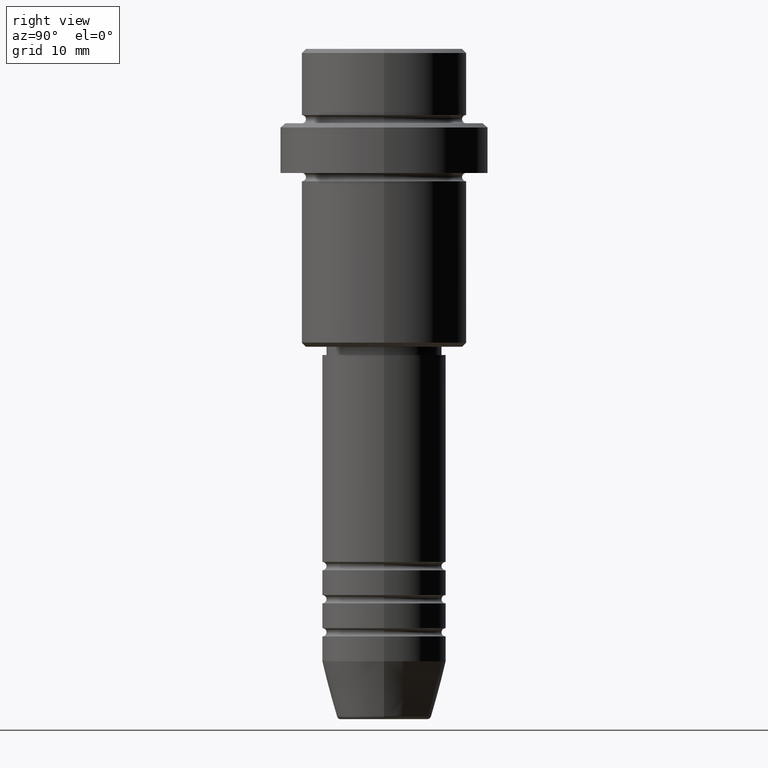
[diagram: clean part render]
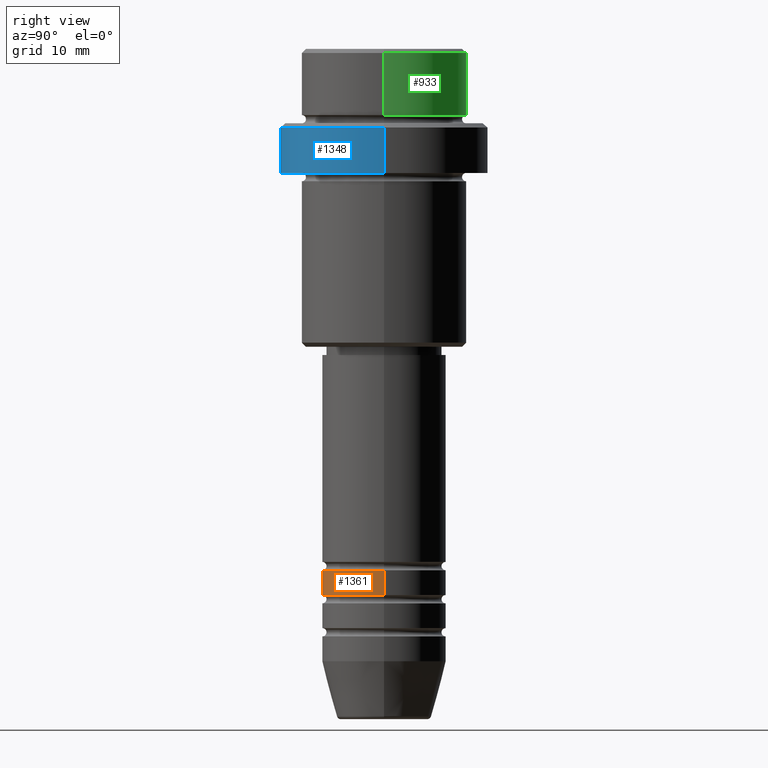
[diagram: same view with three faces highlighted in distinct colors, each labeled with its STEP entity id]
A machine part, right view with three faces highlighted in distinct colors.
Their STEP definitions:

[orange] entity #1361 — the highlighted cylindrical surface (partial cylindrical patch) has radius 7.5 mm, axis along (-0, -0, 1).
#14 = CYLINDRICAL_SURFACE ( 'NONE', #757, 7.500000000000000000 ) ;
#63 = EDGE_CURVE ( 'NONE', #1059, #1352, #221, .T. ) ;
#125 = CARTESIAN_POINT ( 'NONE',  ( 7.500000000000000000, 0.000000000000000000, -62.99999999999988631 ) ) ;
#171 = EDGE_CURVE ( 'NONE', #1230, #1059, #1320, .T. ) ;
#192 = ORIENTED_EDGE ( 'NONE', *, *, #838, .F. ) ;
#206 = AXIS2_PLACEMENT_3D ( 'NONE', #966, #424, #304 ) ;
#210 = CARTESIAN_POINT ( 'NONE',  ( 0.000000000000000000, 0.000000000000000000, -65.99999999999988631 ) ) ;
#221 = LINE ( 'NONE', #772, #1127 ) ;
#224 = DIRECTION ( 'NONE',  ( 1.000000000000000000, 0.000000000000000000, 0.000000000000000000 ) ) ;
#304 = DIRECTION ( 'NONE',  ( 1.000000000000000000, 0.000000000000000000, 0.000000000000000000 ) ) ;
#307 = CARTESIAN_POINT ( 'NONE',  ( -7.500000000000000000, 9.184850993605147944E-16, -65.99999999999988631 ) ) ;
#328 = DIRECTION ( 'NONE',  ( -0.000000000000000000, -0.000000000000000000, 1.000000000000000000 ) ) ;
#357 = DIRECTION ( 'NONE',  ( -0.000000000000000000, -0.000000000000000000, 1.000000000000000000 ) ) ;
#368 = CIRCLE ( 'NONE', #206, 7.500000000000000000 ) ;
#379 = ORIENTED_EDGE ( 'NONE', *, *, #63, .T. ) ;
#401 = VERTEX_POINT ( 'NONE', #1335 ) ;
#424 = DIRECTION ( 'NONE',  ( -0.000000000000000000, -0.000000000000000000, 1.000000000000000000 ) ) ;
#546 = CARTESIAN_POINT ( 'NONE',  ( 0.000000000000000000, 0.000000000000000000, 0.000000000000000000 ) ) ;
#701 = AXIS2_PLACEMENT_3D ( 'NONE', #210, #963, #1186 ) ;
#757 = AXIS2_PLACEMENT_3D ( 'NONE', #546, #1115, #224 ) ;
#772 = CARTESIAN_POINT ( 'NONE',  ( 7.500000000000000000, 0.000000000000000000, 0.000000000000000000 ) ) ;
#838 = EDGE_CURVE ( 'NONE', #401, #1352, #368, .T. ) ;
#963 = DIRECTION ( 'NONE',  ( -0.000000000000000000, -0.000000000000000000, 1.000000000000000000 ) ) ;
#966 = CARTESIAN_POINT ( 'NONE',  ( 0.000000000000000000, 0.000000000000000000, -62.99999999999988631 ) ) ;
#1009 = FACE_OUTER_BOUND ( 'NONE', #1047, .T. ) ;
#1021 = LINE ( 'NONE', #1026, #1397 ) ;
#1026 = CARTESIAN_POINT ( 'NONE',  ( -7.500000000000000000, 9.184850993605147944E-16, 0.000000000000000000 ) ) ;
#1034 = EDGE_CURVE ( 'NONE', #1230, #401, #1021, .T. ) ;
#1047 = EDGE_LOOP ( 'NONE', ( #1051, #1119, #379, #192 ) ) ;
#1051 = ORIENTED_EDGE ( 'NONE', *, *, #1034, .F. ) ;
#1059 = VERTEX_POINT ( 'NONE', #1106 ) ;
#1106 = CARTESIAN_POINT ( 'NONE',  ( 7.500000000000000000, 0.000000000000000000, -65.99999999999988631 ) ) ;
#1115 = DIRECTION ( 'NONE',  ( -0.000000000000000000, -0.000000000000000000, 1.000000000000000000 ) ) ;
#1119 = ORIENTED_EDGE ( 'NONE', *, *, #171, .T. ) ;
#1127 = VECTOR ( 'NONE', #357, 1000.000000000000000 ) ;
#1186 = DIRECTION ( 'NONE',  ( 1.000000000000000000, 0.000000000000000000, 0.000000000000000000 ) ) ;
#1230 = VERTEX_POINT ( 'NONE', #307 ) ;
#1320 = CIRCLE ( 'NONE', #701, 7.500000000000000000 ) ;
#1335 = CARTESIAN_POINT ( 'NONE',  ( -7.500000000000000000, 9.184850993605147944E-16, -62.99999999999988631 ) ) ;
#1352 = VERTEX_POINT ( 'NONE', #125 ) ;
#1361 = ADVANCED_FACE ( 'NONE', ( #1009 ), #14, .T. ) ;
#1397 = VECTOR ( 'NONE', #328, 1000.000000000000000 ) ;

[blue] entity #1348 — the highlighted cylindrical surface (partial cylindrical patch) has radius 12.5 mm, axis along (-0, -0, 1).
#18 = LINE ( 'NONE', #675, #272 ) ;
#32 = DIRECTION ( 'NONE',  ( -0.000000000000000000, -0.000000000000000000, 1.000000000000000000 ) ) ;
#85 = CARTESIAN_POINT ( 'NONE',  ( 12.50000000000000000, 0.000000000000000000, -9.500000000000005329 ) ) ;
#95 = AXIS2_PLACEMENT_3D ( 'NONE', #444, #795, #653 ) ;
#149 = DIRECTION ( 'NONE',  ( 0.000000000000000000, 0.000000000000000000, -1.000000000000000000 ) ) ;
#172 = CARTESIAN_POINT ( 'NONE',  ( -12.50000000000000000, 1.530808498934191521E-15, -15.00000000000000000 ) ) ;
#185 = CIRCLE ( 'NONE', #322, 12.50000000000000000 ) ;
#212 = CARTESIAN_POINT ( 'NONE',  ( -12.50000000000000000, 1.530808498934191521E-15, 0.000000000000000000 ) ) ;
#229 = ORIENTED_EDGE ( 'NONE', *, *, #470, .T. ) ;
#272 = VECTOR ( 'NONE', #32, 1000.000000000000000 ) ;
#322 = AXIS2_PLACEMENT_3D ( 'NONE', #384, #1250, #1160 ) ;
#329 = ORIENTED_EDGE ( 'NONE', *, *, #514, .T. ) ;
#380 = ORIENTED_EDGE ( 'NONE', *, *, #389, .F. ) ;
#384 = CARTESIAN_POINT ( 'NONE',  ( 0.000000000000000000, 0.000000000000000000, -15.00000000000000000 ) ) ;
#389 = EDGE_CURVE ( 'NONE', #481, #1141, #1197, .T. ) ;
#409 = VECTOR ( 'NONE', #1212, 1000.000000000000000 ) ;
#444 = CARTESIAN_POINT ( 'NONE',  ( 0.000000000000000000, 0.000000000000000000, 0.000000000000000000 ) ) ;
#470 = EDGE_CURVE ( 'NONE', #737, #1141, #1346, .T. ) ;
#481 = VERTEX_POINT ( 'NONE', #172 ) ;
#514 = EDGE_CURVE ( 'NONE', #715, #737, #18, .T. ) ;
#515 = FACE_OUTER_BOUND ( 'NONE', #984, .T. ) ;
#577 = DIRECTION ( 'NONE',  ( 1.000000000000000000, 0.000000000000000000, 0.000000000000000000 ) ) ;
#627 = CYLINDRICAL_SURFACE ( 'NONE', #95, 12.50000000000000000 ) ;
#653 = DIRECTION ( 'NONE',  ( 1.000000000000000000, 0.000000000000000000, 0.000000000000000000 ) ) ;
#675 = CARTESIAN_POINT ( 'NONE',  ( 12.50000000000000000, 0.000000000000000000, 0.000000000000000000 ) ) ;
#715 = VERTEX_POINT ( 'NONE', #1003 ) ;
#737 = VERTEX_POINT ( 'NONE', #85 ) ;
#795 = DIRECTION ( 'NONE',  ( -0.000000000000000000, -0.000000000000000000, 1.000000000000000000 ) ) ;
#893 = ORIENTED_EDGE ( 'NONE', *, *, #1143, .T. ) ;
#984 = EDGE_LOOP ( 'NONE', ( #380, #893, #329, #229 ) ) ;
#1003 = CARTESIAN_POINT ( 'NONE',  ( 12.50000000000000000, 0.000000000000000000, -15.00000000000000000 ) ) ;
#1129 = AXIS2_PLACEMENT_3D ( 'NONE', #1340, #149, #577 ) ;
#1141 = VERTEX_POINT ( 'NONE', #1243 ) ;
#1143 = EDGE_CURVE ( 'NONE', #481, #715, #185, .T. ) ;
#1160 = DIRECTION ( 'NONE',  ( 1.000000000000000000, 0.000000000000000000, 0.000000000000000000 ) ) ;
#1197 = LINE ( 'NONE', #212, #409 ) ;
#1212 = DIRECTION ( 'NONE',  ( -0.000000000000000000, -0.000000000000000000, 1.000000000000000000 ) ) ;
#1243 = CARTESIAN_POINT ( 'NONE',  ( -12.50000000000000000, 1.530808498934191521E-15, -9.500000000000005329 ) ) ;
#1250 = DIRECTION ( 'NONE',  ( -0.000000000000000000, -0.000000000000000000, 1.000000000000000000 ) ) ;
#1340 = CARTESIAN_POINT ( 'NONE',  ( 0.000000000000000000, 0.000000000000000000, -9.500000000000005329 ) ) ;
#1346 = CIRCLE ( 'NONE', #1129, 12.50000000000000000 ) ;
#1348 = ADVANCED_FACE ( 'NONE', ( #515 ), #627, .T. ) ;

[green] entity #933 — the highlighted cylindrical surface (partial cylindrical patch) has radius 10 mm, axis along (-0, -0, 1).
#21 = EDGE_CURVE ( 'NONE', #1311, #1202, #434, .T. ) ;
#64 = DIRECTION ( 'NONE',  ( -0.000000000000000000, -0.000000000000000000, 1.000000000000000000 ) ) ;
#91 = CARTESIAN_POINT ( 'NONE',  ( 9.999999999999998224, 0.000000000000000000, -0.4999999999999970024 ) ) ;
#117 = DIRECTION ( 'NONE',  ( 1.000000000000000000, 0.000000000000000000, 0.000000000000000000 ) ) ;
#119 = CIRCLE ( 'NONE', #1195, 9.999999999999998224 ) ;
#158 = DIRECTION ( 'NONE',  ( 1.000000000000000000, 0.000000000000000000, 0.000000000000000000 ) ) ;
#184 = CARTESIAN_POINT ( 'NONE',  ( 9.999999999999998224, 0.000000000000000000, -7.999999999999998224 ) ) ;
#248 = VERTEX_POINT ( 'NONE', #765 ) ;
#350 = DIRECTION ( 'NONE',  ( -0.000000000000000000, -0.000000000000000000, 1.000000000000000000 ) ) ;
#370 = ORIENTED_EDGE ( 'NONE', *, *, #21, .T. ) ;
#428 = CARTESIAN_POINT ( 'NONE',  ( 0.000000000000000000, 0.000000000000000000, -0.4999999999999970024 ) ) ;
#434 = CIRCLE ( 'NONE', #519, 9.999999999999998224 ) ;
#461 = FACE_OUTER_BOUND ( 'NONE', #1122, .T. ) ;
#465 = CARTESIAN_POINT ( 'NONE',  ( 0.000000000000000000, 0.000000000000000000, 0.000000000000000000 ) ) ;
#519 = AXIS2_PLACEMENT_3D ( 'NONE', #1105, #350, #548 ) ;
#540 = EDGE_CURVE ( 'NONE', #248, #667, #119, .T. ) ;
#548 = DIRECTION ( 'NONE',  ( 1.000000000000000000, 0.000000000000000000, 0.000000000000000000 ) ) ;
#613 = VECTOR ( 'NONE', #64, 1000.000000000000000 ) ;
#667 = VERTEX_POINT ( 'NONE', #91 ) ;
#727 = LINE ( 'NONE', #1303, #1193 ) ;
#735 = AXIS2_PLACEMENT_3D ( 'NONE', #465, #769, #117 ) ;
#765 = CARTESIAN_POINT ( 'NONE',  ( -9.999999999999998224, 1.224646799147353059E-15, -0.4999999999999970024 ) ) ;
#769 = DIRECTION ( 'NONE',  ( -0.000000000000000000, -0.000000000000000000, 1.000000000000000000 ) ) ;
#788 = ORIENTED_EDGE ( 'NONE', *, *, #540, .T. ) ;
#805 = ORIENTED_EDGE ( 'NONE', *, *, #1108, .T. ) ;
#810 = LINE ( 'NONE', #1062, #613 ) ;
#816 = CARTESIAN_POINT ( 'NONE',  ( -9.999999999999998224, 1.224646799147353059E-15, -7.999999999999998224 ) ) ;
#933 = ADVANCED_FACE ( 'NONE', ( #461 ), #1334, .T. ) ;
#1013 = ORIENTED_EDGE ( 'NONE', *, *, #1300, .F. ) ;
#1052 = DIRECTION ( 'NONE',  ( 0.000000000000000000, 0.000000000000000000, -1.000000000000000000 ) ) ;
#1062 = CARTESIAN_POINT ( 'NONE',  ( -9.999999999999998224, 1.224646799147353059E-15, 0.000000000000000000 ) ) ;
#1105 = CARTESIAN_POINT ( 'NONE',  ( 0.000000000000000000, 0.000000000000000000, -7.999999999999998224 ) ) ;
#1108 = EDGE_CURVE ( 'NONE', #1202, #248, #810, .T. ) ;
#1122 = EDGE_LOOP ( 'NONE', ( #370, #805, #788, #1013 ) ) ;
#1189 = DIRECTION ( 'NONE',  ( -0.000000000000000000, -0.000000000000000000, 1.000000000000000000 ) ) ;
#1193 = VECTOR ( 'NONE', #1189, 1000.000000000000000 ) ;
#1195 = AXIS2_PLACEMENT_3D ( 'NONE', #428, #1052, #158 ) ;
#1202 = VERTEX_POINT ( 'NONE', #816 ) ;
#1300 = EDGE_CURVE ( 'NONE', #1311, #667, #727, .T. ) ;
#1303 = CARTESIAN_POINT ( 'NONE',  ( 9.999999999999998224, 0.000000000000000000, 0.000000000000000000 ) ) ;
#1311 = VERTEX_POINT ( 'NONE', #184 ) ;
#1334 = CYLINDRICAL_SURFACE ( 'NONE', #735, 9.999999999999998224 ) ;